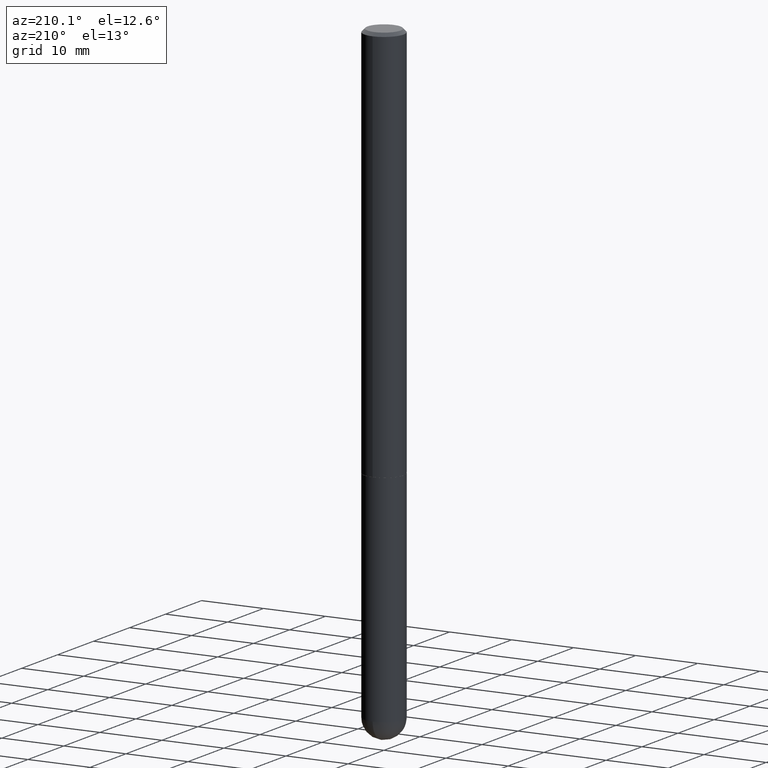
[diagram: clean part render]
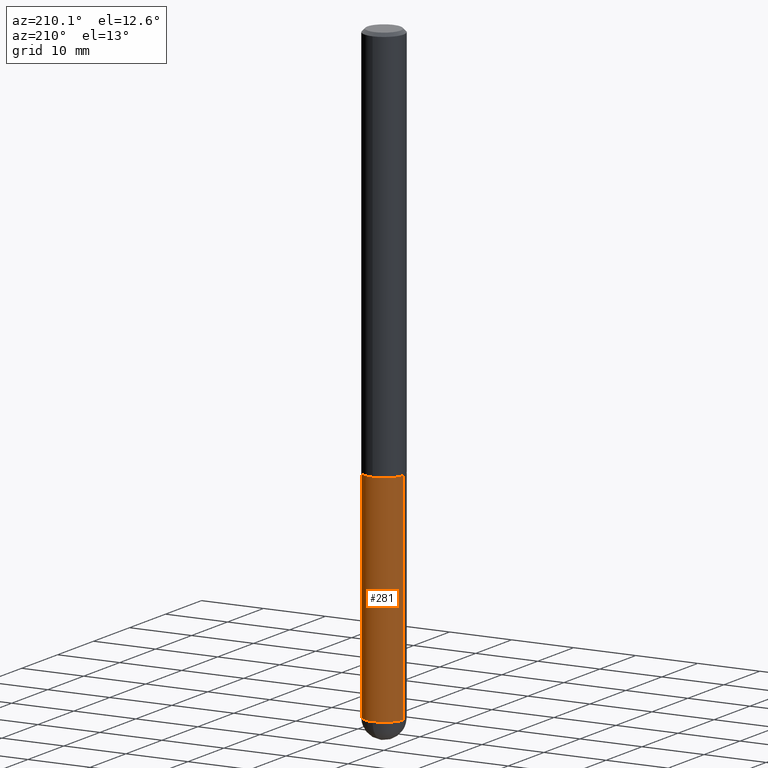
[diagram: same view with one face highlighted and labeled with its STEP entity id]
A machine part, auxiliary view. The second image highlights one B-rep face of the part: STEP entity #281.
In plain terms, the highlighted cylindrical surface (edge-blend (fillet) strip) has radius 3.175 mm, axis along (-0, 0, 1).
Its self-contained STEP definition (entity closure, byte-faithful):
#5 = AXIS2_PLACEMENT_3D ( 'NONE', #125, #90, #189 ) ;
#8 = CARTESIAN_POINT ( 'NONE',  ( 0.1250000000000000000, -8.728703347107833388E-16, 6.095220969744919741E-30 ) ) ;
#9 = DIRECTION ( 'NONE',  ( 1.000000000000000000, -6.982962677686266711E-15, 4.876176775795935793E-29 ) ) ;
#12 = CARTESIAN_POINT ( 'NONE',  ( 0.1250000000000000000, -9.601573681818648281E-15, -2.500000000000000000 ) ) ;
#24 = AXIS2_PLACEMENT_3D ( 'NONE', #246, #377, #213 ) ;
#41 = EDGE_CURVE ( 'NONE', #273, #334, #110, .T. ) ;
#51 = ORIENTED_EDGE ( 'NONE', *, *, #315, .F. ) ;
#54 = VERTEX_POINT ( 'NONE', #160 ) ;
#59 = CIRCLE ( 'NONE', #231, 0.1250000000000000000 ) ;
#70 = LINE ( 'NONE', #372, #387 ) ;
#77 = DIRECTION ( 'NONE',  ( -2.445468806185136877E-29, 3.491481338843145188E-15, 1.000000000000000000 ) ) ;
#82 = EDGE_LOOP ( 'NONE', ( #298, #359, #395, #51, #87 ) ) ;
#87 = ORIENTED_EDGE ( 'NONE', *, *, #311, .T. ) ;
#90 = DIRECTION ( 'NONE',  ( -2.445468806185136597E-29, 3.491481338843145583E-15, 1.000000000000000000 ) ) ;
#103 = FACE_OUTER_BOUND ( 'NONE', #82, .T. ) ;
#110 = CIRCLE ( 'NONE', #5, 0.1250000000000000000 ) ;
#113 = EDGE_CURVE ( 'NONE', #54, #334, #70, .T. ) ;
#125 = CARTESIAN_POINT ( 'NONE',  ( 6.113672015462842613E-29, -8.728703347107864943E-15, -2.500000000000000000 ) ) ;
#131 = CARTESIAN_POINT ( 'NONE',  ( 0.1250000000000000000, -1.200196710227331272E-14, -3.875000000000000000 ) ) ;
#134 = EDGE_CURVE ( 'NONE', #252, #54, #307, .T. ) ;
#135 = CYLINDRICAL_SURFACE ( 'NONE', #255, 0.1250000000000000000 ) ;
#160 = CARTESIAN_POINT ( 'NONE',  ( -0.1250000000000000000, -1.024091834786240415E-14, -3.875000000000000000 ) ) ;
#162 = VECTOR ( 'NONE', #77, 39.37007874015748143 ) ;
#189 = DIRECTION ( 'NONE',  ( 1.000000000000000000, -6.982962677686270655E-15, 0.000000000000000000 ) ) ;
#213 = DIRECTION ( 'NONE',  ( 1.000000000000000000, -6.982962677686262766E-15, 0.000000000000000000 ) ) ;
#231 = AXIS2_PLACEMENT_3D ( 'NONE', #283, #321, #384 ) ;
#233 = CARTESIAN_POINT ( 'NONE',  ( 8.728703347108770161E-16, 0.1249999999999863443, -3.875000000000000444 ) ) ;
#234 = DIRECTION ( 'NONE',  ( -2.445468806185136597E-29, 3.491481338843145583E-15, 1.000000000000000000 ) ) ;
#246 = CARTESIAN_POINT ( 'NONE',  ( 9.476191623967404313E-29, -1.352949018801718908E-14, -3.875000000000000000 ) ) ;
#252 = VERTEX_POINT ( 'NONE', #233 ) ;
#255 = AXIS2_PLACEMENT_3D ( 'NONE', #282, #234, #9 ) ;
#273 = VERTEX_POINT ( 'NONE', #12 ) ;
#278 = VERTEX_POINT ( 'NONE', #131 ) ;
#281 = ADVANCED_FACE ( 'NONE', ( #103 ), #135, .T. ) ;
#282 = CARTESIAN_POINT ( 'NONE',  ( 0.000000000000000000, 0.000000000000000000, 0.000000000000000000 ) ) ;
#283 = CARTESIAN_POINT ( 'NONE',  ( 9.476191623967404313E-29, -1.352949018801718908E-14, -3.875000000000000000 ) ) ;
#298 = ORIENTED_EDGE ( 'NONE', *, *, #134, .T. ) ;
#307 = CIRCLE ( 'NONE', #24, 0.1250000000000000000 ) ;
#311 = EDGE_CURVE ( 'NONE', #278, #252, #59, .T. ) ;
#315 = EDGE_CURVE ( 'NONE', #278, #273, #353, .T. ) ;
#321 = DIRECTION ( 'NONE',  ( -2.445468806185136597E-29, 3.491481338843145583E-15, 1.000000000000000000 ) ) ;
#334 = VERTEX_POINT ( 'NONE', #335 ) ;
#335 = CARTESIAN_POINT ( 'NONE',  ( -0.1250000000000000000, -1.024091834786240099E-14, -2.500000000000000000 ) ) ;
#353 = LINE ( 'NONE', #8, #162 ) ;
#359 = ORIENTED_EDGE ( 'NONE', *, *, #113, .T. ) ;
#372 = CARTESIAN_POINT ( 'NONE',  ( -0.1250000000000000000, 8.881784197001252323E-16, -6.148668862818632227E-30 ) ) ;
#377 = DIRECTION ( 'NONE',  ( -2.445468806185136597E-29, 3.491481338843145583E-15, 1.000000000000000000 ) ) ;
#384 = DIRECTION ( 'NONE',  ( 1.000000000000000000, -6.982962677686262766E-15, 0.000000000000000000 ) ) ;
#387 = VECTOR ( 'NONE', #411, 39.37007874015748143 ) ;
#395 = ORIENTED_EDGE ( 'NONE', *, *, #41, .F. ) ;
#411 = DIRECTION ( 'NONE',  ( -2.445468806185136877E-29, 3.491481338843145188E-15, 1.000000000000000000 ) ) ;